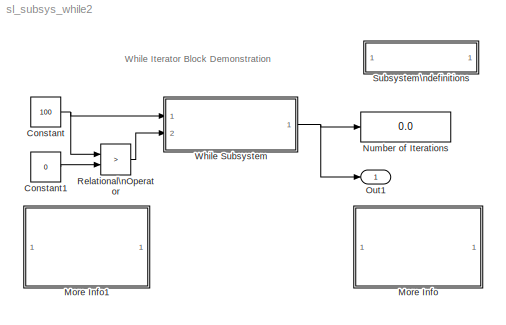
MODEL sl_subsys_while2
KIND model
BLOCK [SubSystem]  Subsystem\ndefinitions
  MaskDisplay = disp('Subsystem\\ndefinitions')\n\n
  MaskIconFrame = on
  MaskIconOpaque = on
  MaskIconRotate = none
  MaskIconUnits = autoscale
  MinAlgLoopOccurrences = off
  OpenFcn = helpview([matlabroot,'/toolbox/simulink/simdemos/sl_subsys_definitions.html']);
  Ports = []
  PropExecContextAcrossSSBoundary = on
  RTWSystemCode = Auto
  TreatAsAtomicUnit = off
BLOCK [Constant] Constant
  Value = 100
BLOCK [Constant] Constant1
  Value = 0
BLOCK [SubSystem] More Info
  MaskDisplay = disp('Double click\\nhere for\\ninformation on\\nthis demonstration')
  MaskIconFrame = on
  MaskIconOpaque = on
  MaskIconRotate = none
  MaskIconUnits = autoscale
  MinAlgLoopOccurrences = off
  Ports = []
  PropExecContextAcrossSSBoundary = on
  RTWSystemCode = Auto
  TreatAsAtomicUnit = off
BLOCK [SubSystem] More Info1
  MaskDisplay = disp('Double click\\nhere for\\nSimulink Help')
  MaskIconFrame = on
  MaskIconOpaque = on
  MaskIconRotate = none
  MaskIconUnits = autoscale
  MinAlgLoopOccurrences = off
  OpenFcn = simcad(bdroot);
  Ports = []
  PropExecContextAcrossSSBoundary = on
  RTWSystemCode = Auto
  TreatAsAtomicUnit = off
BLOCK [Display] Number of Iterations
  Decimation = 1
  Ports = [1]
BLOCK [Outport] Out1
  IconDisplay = Port number
BLOCK [RelationalOperator] Relational\nOperator
  Operator = >
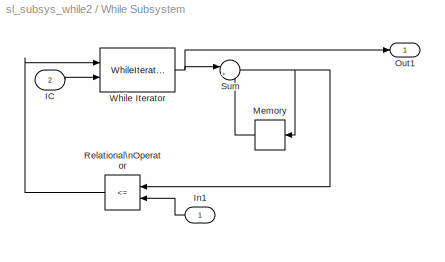
BLOCK [SubSystem] While Subsystem
  MinAlgLoopOccurrences = off
  Ports = [2, 1]
  PropExecContextAcrossSSBoundary = on
  RTWSystemCode = Auto
  TreatAsAtomicUnit = on
BLOCK [Inport] While Subsystem/IC
  IconDisplay = Port number
  LatchInput = off
  Port = 2
BLOCK [Inport] While Subsystem/In1
  IconDisplay = Port number
  LatchInput = off
  Port = 1
BLOCK [Memory] While Subsystem/Memory
  InheritSampleTime = on
BLOCK [Outport] While Subsystem/Out1
  IconDisplay = Port number
BLOCK [RelationalOperator] While Subsystem/Relational\nOperator
  Operator = <=
BLOCK [Sum] While Subsystem/Sum
  IconShape = round
  Inputs = |++
  Ports = [2, 1]
BLOCK [WhileIterator] While Subsystem/While Iterator
  MaxIters = 1000
  OutputDataType = double
  Ports = [2, 1]
  ResetStates = reset
  ShowIterationPort = on
ANNOTATION (root): While Iterator Block Demonstration
ANNOTATION More Info: This model demonstrates how a While Iterator block can be used to run the blocks in \na subsystem multiple number of times. In this case, there is a counter in the While\nSubsystem that adds up the numbers from 1 to N, where N is the number of iterations\nthat have been run. The counter runs while this value is less than the input value to \nthe subsystem. The number of iterations it took to excee...<+376ch>
ANNOTATION More Info: While Iterator Block Demonstration
LINE Constant1:1 -> Relational\nOperator:2
NET Constant:1 -> Relational\nOperator:1, While Subsystem:1
LINE Relational\nOperator:1 -> While Subsystem:2
LINE While Subsystem/IC:1 -> While Subsystem/While Iterator:2
LINE While Subsystem/In1:1 -> While Subsystem/Relational\nOperator:2
LINE While Subsystem/Memory:1 -> While Subsystem/Sum:2
LINE While Subsystem/Relational\nOperator:1 -> While Subsystem/While Iterator:1
NET While Subsystem/Sum:1 -> While Subsystem/Memory:1, While Subsystem/Relational\nOperator:1
NET While Subsystem/While Iterator:1 -> While Subsystem/Out1:1, While Subsystem/Sum:1
NET While Subsystem:1 -> Number of Iterations:1, Out1:1
note: NET lines group one-source signal fan-out (src -> all destinations, sorted); 1:1 wires keep LINE
